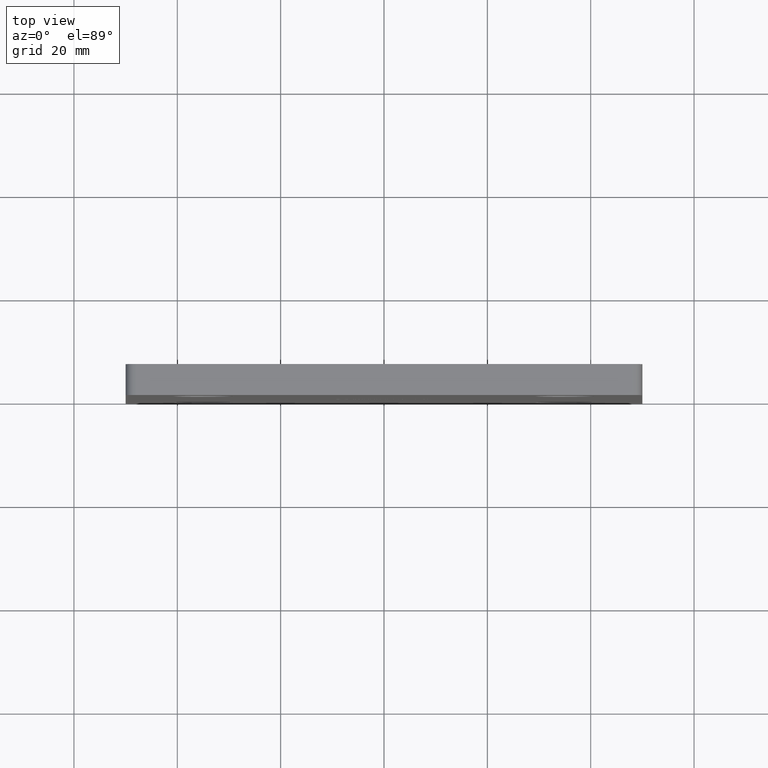
[diagram: clean part render]
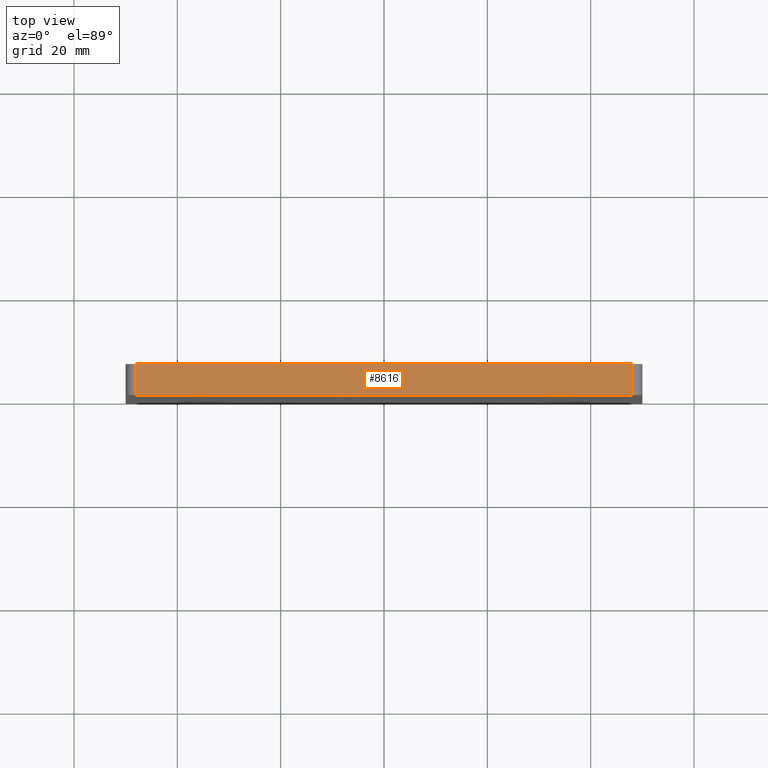
[diagram: same view with one face highlighted and labeled with its STEP entity id]
A machine part, top view. The second image highlights one B-rep face of the part: STEP entity #8616.
In plain terms, the highlighted planar face has unit normal (0, 0, -1).
Its self-contained STEP definition (entity closure, byte-faithful):
#126 = ORIENTED_EDGE ( 'NONE', *, *, #2987, .T. ) ;
#518 = AXIS2_PLACEMENT_3D ( 'NONE', #1709, #4363, #4291 ) ;
#1199 = CARTESIAN_POINT ( 'NONE',  ( -49.99999999999998579, 0.000000000000000000, 50.00000000000000711 ) ) ;
#1411 = VECTOR ( 'NONE', #7451, 1000.000000000000000 ) ;
#1674 = LINE ( 'NONE', #9294, #2527 ) ;
#1709 = CARTESIAN_POINT ( 'NONE',  ( -49.99999999999998579, 6.000000000000000000, 50.00000000000000711 ) ) ;
#2527 = VECTOR ( 'NONE', #9173, 1000.000000000000000 ) ;
#2631 = VERTEX_POINT ( 'NONE', #6450 ) ;
#2987 = EDGE_CURVE ( 'NONE', #4574, #5092, #6445, .T. ) ;
#3028 = CARTESIAN_POINT ( 'NONE',  ( -47.99999999999998579, 6.000000000000000000, 50.00000000000000711 ) ) ;
#3060 = EDGE_CURVE ( 'NONE', #9772, #2631, #1674, .T. ) ;
#4291 = DIRECTION ( 'NONE',  ( -1.000000000000000000, 0.000000000000000000, -0.000000000000000000 ) ) ;
#4363 = DIRECTION ( 'NONE',  ( 0.000000000000000000, 0.000000000000000000, -1.000000000000000000 ) ) ;
#4574 = VERTEX_POINT ( 'NONE', #6744 ) ;
#4628 = DIRECTION ( 'NONE',  ( -0.000000000000000000, 1.000000000000000000, -0.000000000000000000 ) ) ;
#5092 = VERTEX_POINT ( 'NONE', #5129 ) ;
#5129 = CARTESIAN_POINT ( 'NONE',  ( 48.00000000000001421, 0.000000000000000000, 50.00000000000000711 ) ) ;
#5414 = ORIENTED_EDGE ( 'NONE', *, *, #3060, .F. ) ;
#6445 = LINE ( 'NONE', #1199, #1411 ) ;
#6450 = CARTESIAN_POINT ( 'NONE',  ( 48.00000000000001421, 6.000000000000000000, 50.00000000000000711 ) ) ;
#6721 = CARTESIAN_POINT ( 'NONE',  ( -47.99999999999998579, 6.000000000000000000, 50.00000000000000711 ) ) ;
#6744 = CARTESIAN_POINT ( 'NONE',  ( -47.99999999999998579, 0.000000000000000000, 50.00000000000000711 ) ) ;
#6899 = ORIENTED_EDGE ( 'NONE', *, *, #7728, .T. ) ;
#7031 = PLANE ( 'NONE',  #518 ) ;
#7365 = LINE ( 'NONE', #6721, #8765 ) ;
#7451 = DIRECTION ( 'NONE',  ( 1.000000000000000000, 0.000000000000000000, 0.000000000000000000 ) ) ;
#7728 = EDGE_CURVE ( 'NONE', #9772, #4574, #7365, .T. ) ;
#8101 = EDGE_CURVE ( 'NONE', #5092, #2631, #8471, .T. ) ;
#8471 = LINE ( 'NONE', #9208, #10017 ) ;
#8616 = ADVANCED_FACE ( 'NONE', ( #10975 ), #7031, .F. ) ;
#8679 = ORIENTED_EDGE ( 'NONE', *, *, #8101, .T. ) ;
#8765 = VECTOR ( 'NONE', #11149, 1000.000000000000000 ) ;
#9065 = EDGE_LOOP ( 'NONE', ( #5414, #6899, #126, #8679 ) ) ;
#9173 = DIRECTION ( 'NONE',  ( 1.000000000000000000, 0.000000000000000000, 0.000000000000000000 ) ) ;
#9208 = CARTESIAN_POINT ( 'NONE',  ( 48.00000000000001421, 6.000000000000000000, 50.00000000000000711 ) ) ;
#9294 = CARTESIAN_POINT ( 'NONE',  ( -49.99999999999998579, 6.000000000000000000, 50.00000000000000711 ) ) ;
#9772 = VERTEX_POINT ( 'NONE', #3028 ) ;
#10017 = VECTOR ( 'NONE', #4628, 1000.000000000000000 ) ;
#10975 = FACE_OUTER_BOUND ( 'NONE', #9065, .T. ) ;
#11149 = DIRECTION ( 'NONE',  ( 0.000000000000000000, -1.000000000000000000, 0.000000000000000000 ) ) ;